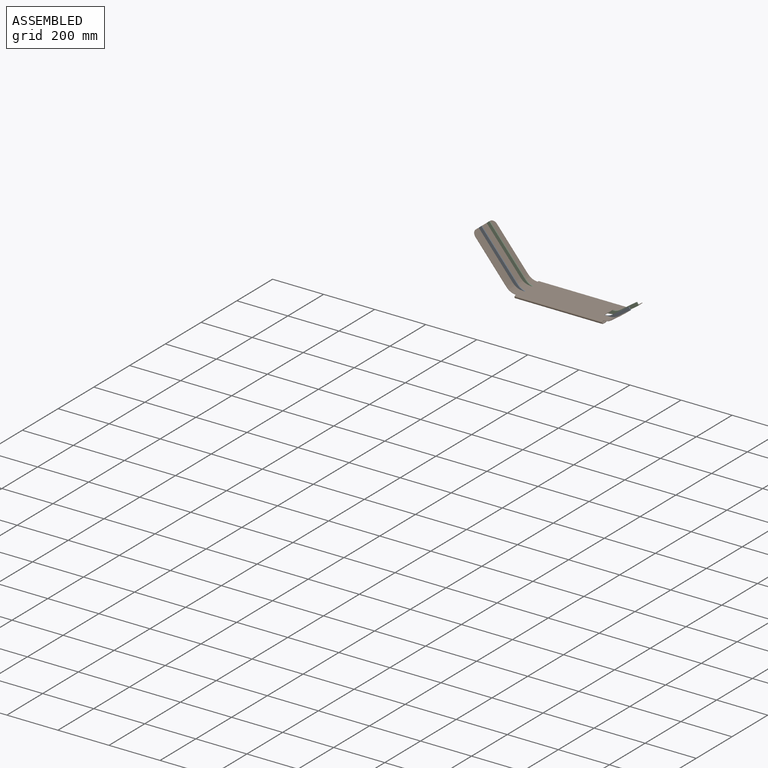
[diagram: assembled view]
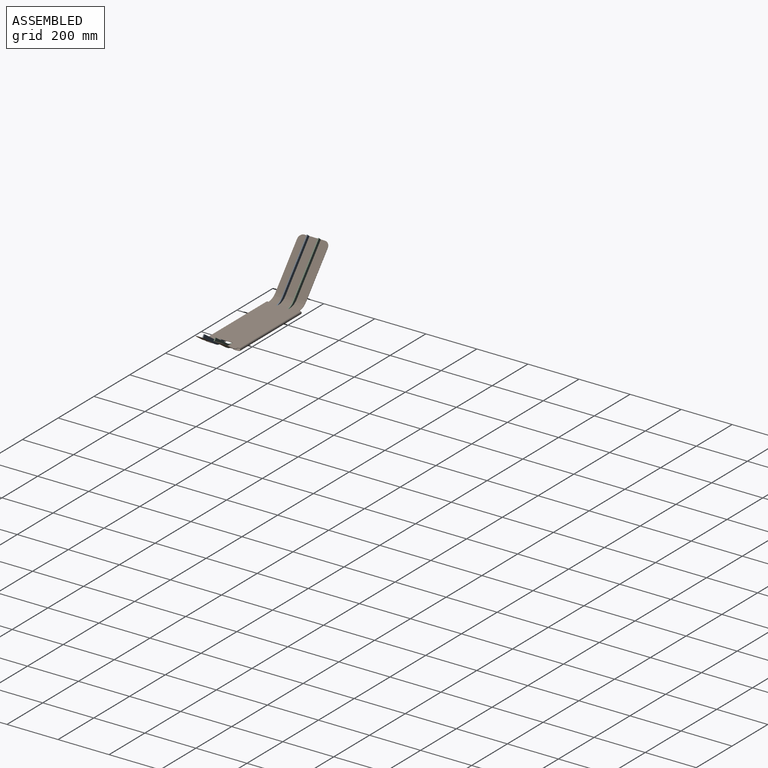
[diagram: assembled view, second angle]
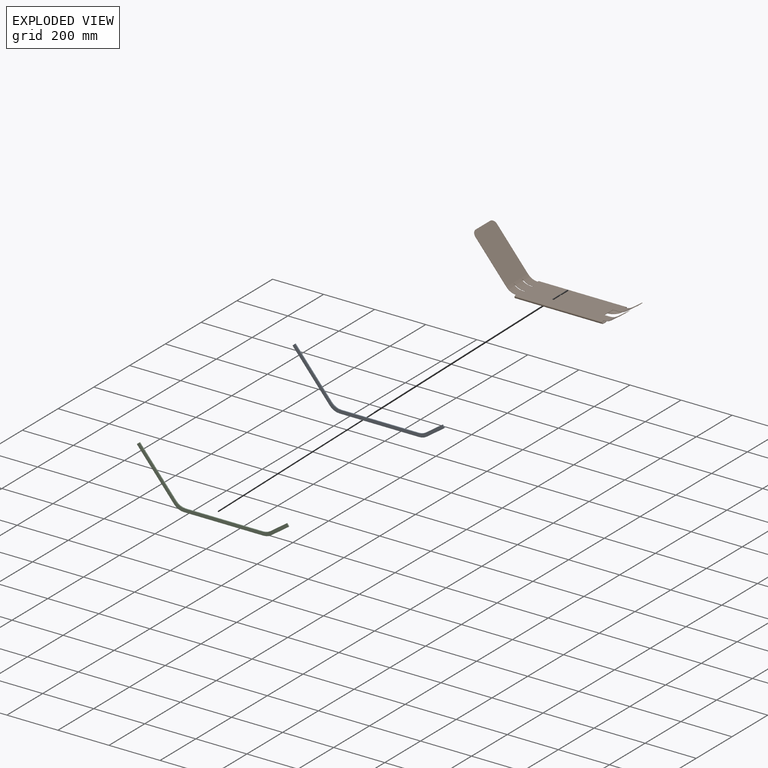
[diagram: exploded view]
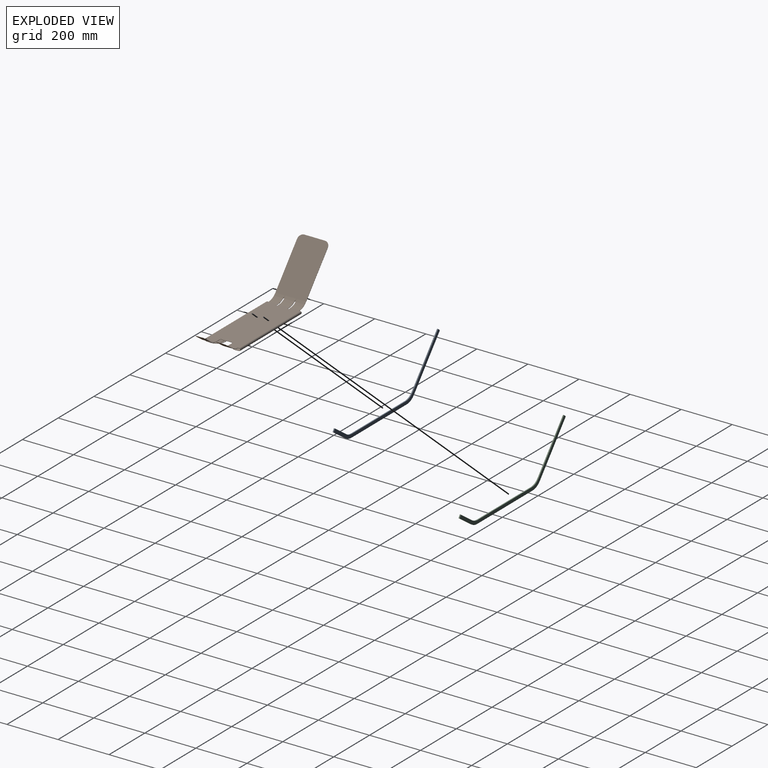
[diagram: exploded view, second angle]
ASSEMBLY  parts=3 mates=2
PART A: 14 faces, bbox 594.5x4x199.9 mm
  f0: plane 302.76x4mm, normal (0,0,1), area 1211mm2, adj f1,f11,f12,f13
  f1: cylinder r=50mm len=38.3mm, axis (0,1,0), area 174.5mm2, adj f0,f2,f12,f13
  f2: plane 169.01x141.81mm, normal (0.77,0,0.64), area 882.5mm2, adj f1,f3,f12,f13
  f3: plane 9.96x8.36mm, normal (-0.64,0,0.77), area 52mm2, adj f2,f4,f12,f13
  f4: plane 173.65x145.71mm, normal (-0.77,0,-0.64), area 906.7mm2, adj f3,f5,f12,f13
  f5: cylinder r=50mm len=38.3mm, axis (0,1,0), area 174.5mm2, adj f4,f6,f12,f13
  f6: plane 312.92x4mm, normal (0,0,-1), area 1251.7mm2, adj f5,f7,f12,f13
  f7: cylinder r=50mm len=28.68mm, axis (0,1,0), area 122.2mm2, adj f6,f8,f12,f13
  f8: plane 68.89x48.24mm, normal (0.57,0,-0.82), area 336.4mm2, adj f7,f9,f12,f13
  f9: plane 10.65x7.46mm, normal (0.82,0,0.57), area 52mm2, adj f8,f10,f12,f13
  f10: plane 65.53x45.89mm, normal (-0.57,0,0.82), area 320mm2, adj f9,f11,f12,f13
  f11: cylinder r=50mm len=28.68mm, axis (0,1,0), area 122.2mm2, adj f0,f10,f12,f13
  f12: plane 594.5x199.87mm, normal (0,-1,0), area 8992.1mm2, adj f0,f1,f2,f3,f4,f5,f6,f7
  f13: plane 594.5x199.87mm, normal (0,1,0), area 8992.1mm2, adj f0,f1,f2,f3,f4,f5,f6,f7
PART B: 70 faces, bbox 592.6x139.3x192.5 mm
  f0: plane 343.48x120mm, normal (0,0,-1), area 39963.1mm2, adj f2,f16,f17,f23,f24,f33,f40,f55
  f1: plane 342.7x120mm, normal (0,0,1), area 39957.8mm2, adj f6,f7,f8,f21,f22,f23,f24,f32
  f2: cylinder r=50mm len=35.75mm, axis (0,1,0), area 1091.9mm2, adj f0,f3,f24,f62
  f3: plane 47.84x35.75mm, normal (0.57,0,-0.82), area 2001.9mm2, adj f2,f4,f24,f62,f67
  f4: plane 15.75x0.82mm, normal (0.82,0,0.57), area 15.8mm2, adj f3,f5,f62,f67
  f5: plane 47.58x35.75mm, normal (-0.57,0,0.82), area 1990.6mm2, adj f4,f6,f24,f62,f67
  f6: cylinder r=50mm len=35.75mm, axis (0,1,0), area 1091.9mm2, adj f1,f5,f24,f62
  f7: cylinder r=50mm len=38.3mm, axis (0,1,0), area 1559.9mm2, adj f1,f12,f13,f32,f58
  f8: cylinder r=50mm len=40.5mm, axis (0,1,0), area 1767.1mm2, adj f1,f13,f55,f59
  f9: plane 343x40.77mm, normal (0,-0.1,0.99), area 13719.8mm2, adj f25,f30,f31,f43,f45,f51
  f10: plane 293.25x2.95mm, normal (0,0.1,0.99), area 841.4mm2, adj f37,f44,f46,f47
  f11: plane 163.18x159.71mm, normal (0,-1,0), area 234.7mm2, adj f13,f15,f16,f22,f42,f69
  f12: plane 163.18x159.82mm, normal (0,1,0), area 234.7mm2, adj f7,f13,f15,f16,f30,f68
  f13: plane 167.61x140.64mm, normal (0.77,0,0.64), area 24917.9mm2, adj f7,f8,f11,f12,f14,f16,f22,f55
  f14: plane 80x0.77mm, normal (-0.64,0,0.77), area 80mm2, adj f13,f15,f68,f69
  f15: plane 159.99x134.25mm, normal (-0.77,0,-0.64), area 24890.5mm2, adj f11,f12,f14,f16,f68,f69
  f16: cylinder r=50mm len=120mm, axis (0,1,0), area 4967.1mm2, adj f0,f11,f12,f13,f15,f55,f56,f58
  f17: cylinder r=50mm len=35.75mm, axis (0,1,0), area 1091.9mm2, adj f0,f18,f23,f61
  f18: plane 47.84x35.75mm, normal (0.57,0,-0.82), area 2001.9mm2, adj f17,f19,f23,f61,f66
  f19: plane 15.75x0.82mm, normal (0.82,0,0.57), area 15.8mm2, adj f18,f20,f61,f66
  f20: plane 47.58x35.75mm, normal (-0.57,0,0.82), area 1990.6mm2, adj f19,f21,f23,f61,f66
  f21: cylinder r=50mm len=35.75mm, axis (0,1,0), area 1091.9mm2, adj f1,f20,f23,f61
  f22: cylinder r=50mm len=38.3mm, axis (0,1,0), area 1559.9mm2, adj f1,f11,f13,f34,f56
  f23: plane 60.61x31.89mm, normal (0,-1,0), area 70.1mm2, adj f0,f1,f17,f18,f20,f21,f41,f66
  f24: plane 60.61x31.89mm, normal (0,1,0), area 70.1mm2, adj f0,f1,f2,f3,f5,f6,f31,f67
  f25: cylinder r=4.02mm len=343mm, axis (-1,0,0), area 4054.1mm2, adj f9,f30,f31,f33
  f26: plane 293.25x2.95mm, normal (0,-0.1,0.99), area 841.4mm2, adj f27,f43,f45,f53
  f27: plane 263x0.99mm, normal (0,-0.99,-0.1), area 263mm2, adj f26,f28,f43,f45
  f28: plane 343x47.75mm, normal (0,0.1,-0.99), area 15781.1mm2, adj f27,f29,f30,f31,f43,f45
  f29: cylinder r=5.02mm len=343mm, axis (-1,0,0), area 5072.1mm2, adj f28,f30,f31,f32
  f30: plane 12.55x10.83mm, normal (-1,0,0), area 26.3mm2, adj f9,f12,f25,f28,f29,f32,f33,f43
  f31: plane 12.55x10.83mm, normal (1,0,0), area 26.3mm2, adj f9,f24,f25,f28,f29,f32,f33,f45
  f32: plane 343x5.05mm, normal (0,0,1), area 1731mm2, adj f1,f7,f29,f30,f31
  f33: plane 343x5mm, normal (0,0,-1), area 1715mm2, adj f0,f25,f30,f31
  f34: plane 343x5.05mm, normal (0,0,1), area 1731mm2, adj f1,f22,f35,f41,f42
  f35: cylinder r=5.02mm len=343mm, axis (-1,0,0), area 5072.1mm2, adj f34,f36,f41,f42
  f36: plane 343x47.75mm, normal (0,-0.1,-0.99), area 15781.1mm2, adj f35,f37,f41,f42,f44,f46
  f37: plane 263x0.99mm, normal (0,0.99,-0.1), area 263mm2, adj f10,f36,f44,f46
  f38: plane 343x40.77mm, normal (0,0.1,0.99), area 13719.8mm2, adj f39,f41,f42,f44,f46,f48
  f39: cylinder r=4.02mm len=343mm, axis (-1,0,0), area 4054.1mm2, adj f38,f40,f41,f42
  f40: plane 343x5mm, normal (0,0,-1), area 1715mm2, adj f0,f39,f41,f42
  f41: plane 12.55x10.83mm, normal (1,0,0), area 26.3mm2, adj f23,f34,f35,f36,f38,f39,f40,f46
  f42: plane 12.55x10.83mm, normal (-1,0,0), area 26.3mm2, adj f11,f34,f35,f36,f38,f39,f40,f44
  f43: cylinder r=40mm len=40mm, axis (0,0.1,-0.99), area 58.3mm2, adj f9,f26,f27,f28,f30,f51,f53,f54
  f44: cylinder r=40mm len=40mm, axis (0,0.1,0.99), area 58.3mm2, adj f10,f36,f37,f38,f42,f47,f48,f50
  f45: cylinder r=40mm len=40mm, axis (0,-0.1,0.99), area 58.3mm2, adj f9,f26,f27,f28,f31,f51,f52,f53
  f46: cylinder r=40mm len=40mm, axis (0,-0.1,-0.99), area 58.3mm2, adj f10,f36,f37,f38,f41,f47,f48,f49
  f47: plane 293.25x0.33mm, normal (0,-1,0), area 96mm2, adj f10,f44,f46,f50
  f48: plane 308.19x0.75mm, normal (0,1,0), area 229.9mm2, adj f38,f44,f46,f49,f50
  f49: cylinder r=50mm len=0.33mm, axis (0,1,0), area 0mm2, adj f46,f48,f50
  f50: plane 307.67x4.04mm, normal (0,0,1), area 1204.6mm2, adj f44,f46,f47,f48,f49
  f51: plane 308.19x0.75mm, normal (0,-1,0), area 229.9mm2, adj f9,f43,f45,f52,f54
  f52: cylinder r=50mm len=0.33mm, axis (0,1,0), area 0mm2, adj f45,f51,f54
  f53: plane 293.25x0.33mm, normal (0,1,0), area 96mm2, adj f26,f43,f45,f54
  f54: plane 307.67x4.04mm, normal (0,0,1), area 1204.6mm2, adj f43,f45,f51,f52,f53
  f55: plane 54.78x18.86mm, normal (0,-1,0), area 51mm2, adj f0,f1,f8,f13,f16,f57
  f56: plane 54.78x18.86mm, normal (0,1,0), area 51mm2, adj f0,f1,f13,f16,f22,f57
  f57: cylinder r=50mm len=8.69mm, axis (0,1,0), area 35mm2, adj f0,f1,f55,f56
  f58: plane 54.78x18.86mm, normal (0,-1,0), area 51mm2, adj f0,f1,f7,f13,f16,f60
  f59: plane 54.78x18.86mm, normal (0,1,0), area 51mm2, adj f0,f1,f8,f13,f16,f60
  f60: cylinder r=50mm len=8.69mm, axis (0,1,0), area 35mm2, adj f0,f1,f58,f59
  f61: plane 97.62x43.38mm, normal (0,1,0), area 105.2mm2, adj f0,f1,f17,f18,f19,f20,f21,f63
  f62: plane 97.62x43.38mm, normal (0,-1,0), area 105.2mm2, adj f0,f1,f2,f3,f4,f5,f6,f65
  f63: plane 10.69x1mm, normal (0,1,0), area 7.5mm2, adj f0,f1,f61,f64
  f64: plane 48.5x1mm, normal (1,0,0), area 48.5mm2, adj f0,f1,f63,f65
  f65: plane 10.69x1mm, normal (0,-1,0), area 7.5mm2, adj f0,f1,f62,f64
  f66: cylinder r=20mm len=20mm, axis (0.57,0,-0.82), area 31.4mm2, adj f18,f19,f20,f23
  f67: cylinder r=20mm len=20mm, axis (-0.57,0,0.82), area 31.4mm2, adj f3,f4,f5,f24
  f68: cylinder r=20mm len=20mm, axis (-0.77,0,-0.64), area 31.4mm2, adj f12,f13,f14,f15
  f69: cylinder r=20mm len=20mm, axis (0.77,0,0.64), area 31.4mm2, adj f11,f13,f14,f15
PART C: same geometry as A
PLACE A t=(153.28,-69.51,-106.39)mm
PLACE B t=(151.2,-49.26,-106.35)mm
PLACE C t=(153.28,-25.01,-106.39)mm
MATE fastened B.f13 <-> C.f4  axis (0.77,0,0.64) through (-20.59,-27.01,72.14)mm
MATE fastened B.f13 <-> A.f4  axis (0.77,0,0.64) through (-20.59,-71.51,72.14)mm
